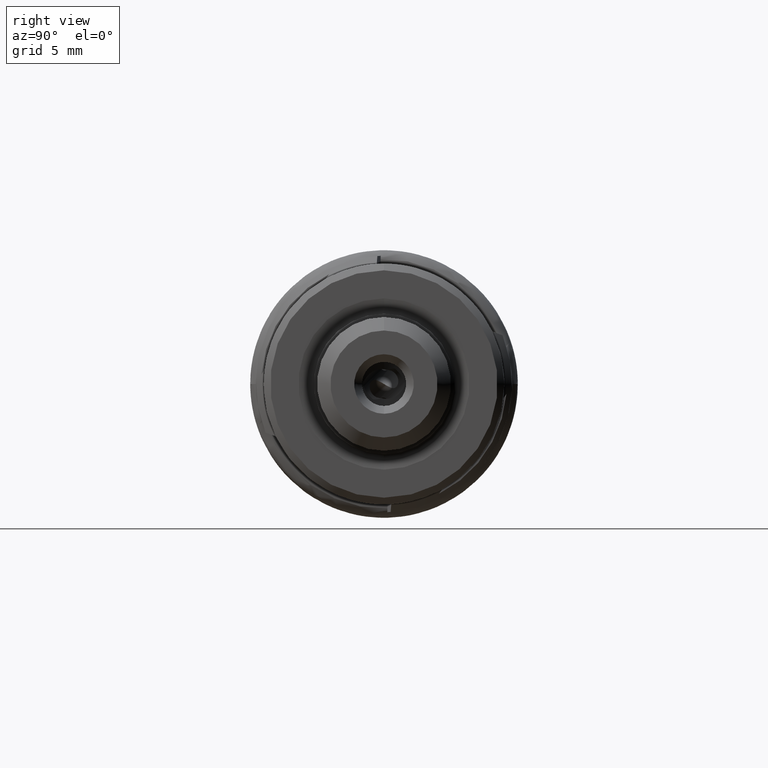
[diagram: clean part render]
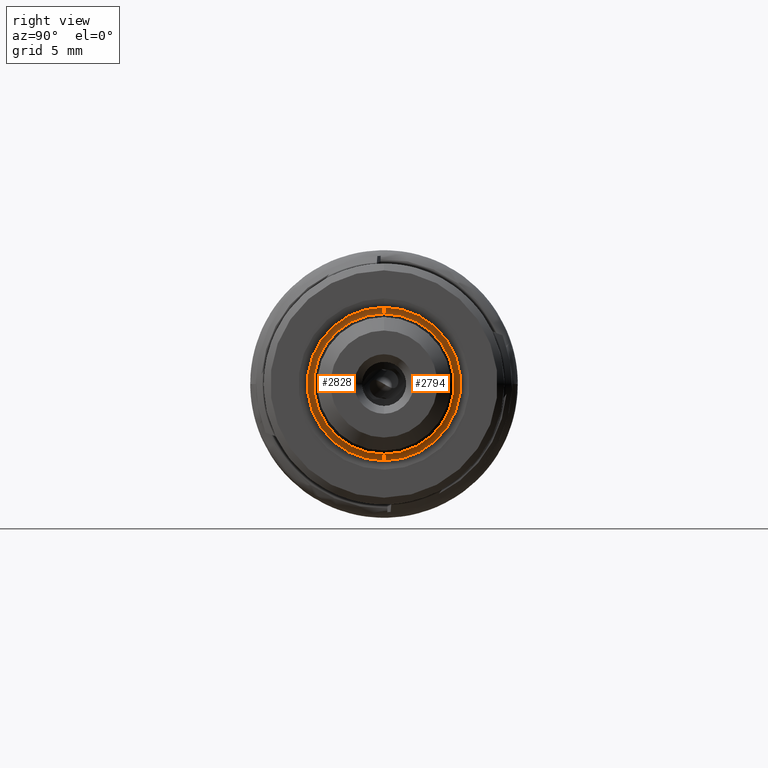
[diagram: same view with one multi-face feature highlighted, each face labeled with its STEP entity id]
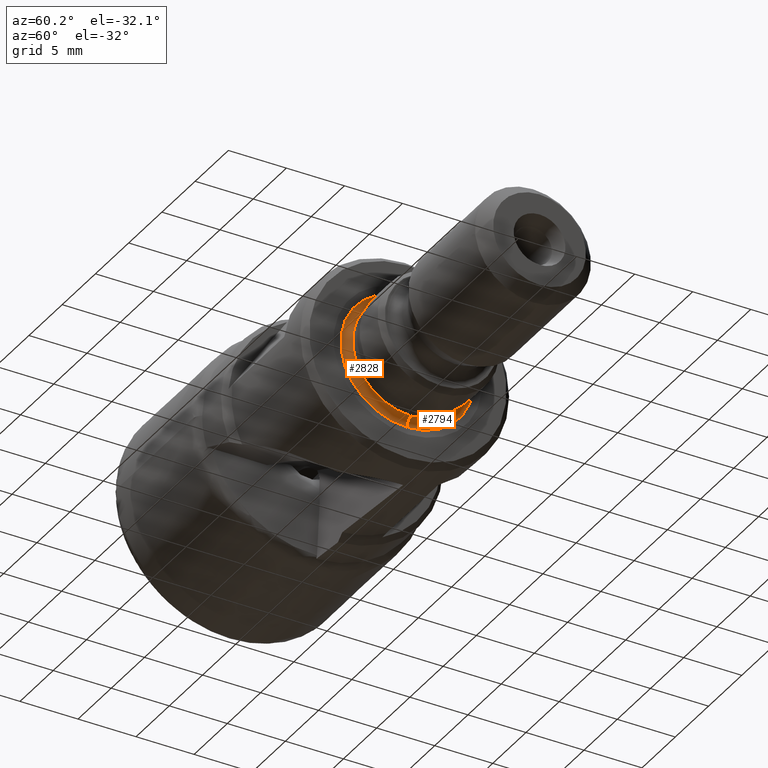
[diagram: same view with one multi-face feature highlighted, each face labeled with its STEP entity id]
A machine part, right view. The highlighted faces form ONE feature: a constant-radius fillet chain: 2 tangent blend faces with common blend radius 0.6 mm. The faces share edges in the B-rep.
A second angle (auxiliary view) of the same feature is appended — it is thin or edge-on in the first view.
Their STEP definitions:
[1] entity #2794 (Torus):
#12 = CIRCLE ( 'NONE', #3463, 5.049999999999998900 ) ;
#845 = CARTESIAN_POINT ( 'NONE',  ( 25.80583915875506000, 7.021517150753438800E-016, -5.733503860576038700 ) ) ;
#879 = CARTESIAN_POINT ( 'NONE',  ( 26.39999999999999900, 6.184466335694132100E-016, -5.049999999999998900 ) ) ;
#893 = CARTESIAN_POINT ( 'NONE',  ( 26.39999999999999900, 0.0000000000000000000, 5.049999999999998900 ) ) ;
#949 = CARTESIAN_POINT ( 'NONE',  ( 26.39999999999999900, 0.0000000000000000000, 5.649999999999998600 ) ) ;
#950 = DIRECTION ( 'NONE',  ( 0.0000000000000000000, -1.000000000000000000, 0.0000000000000000000 ) ) ;
#951 = DIRECTION ( 'NONE',  ( 0.0000000000000000000, 0.0000000000000000000, -1.000000000000000000 ) ) ;
#975 = CARTESIAN_POINT ( 'NONE',  ( 26.39999999999999900, 6.919254415182544400E-016, -5.649999999999998600 ) ) ;
#976 = DIRECTION ( 'NONE',  ( -0.0000000000000000000, 1.000000000000000000, 1.224646799147353200E-016 ) ) ;
#977 = DIRECTION ( 'NONE',  ( 0.0000000000000000000, -1.224646799147353200E-016, 1.000000000000000000 ) ) ;
#1144 = CIRCLE ( 'NONE', #3383, 5.733503860576038700 ) ;
#1220 = CIRCLE ( 'NONE', #3398, 0.5999999999999998700 ) ;
#1225 = CIRCLE ( 'NONE', #3396, 0.5999999999999998700 ) ;
#1387 = VERTEX_POINT ( 'NONE', #845 ) ;
#1393 = VERTEX_POINT ( 'NONE', #879 ) ;
#1402 = VERTEX_POINT ( 'NONE', #893 ) ;
#1425 = VERTEX_POINT ( 'NONE', #3129 ) ;
#1681 = EDGE_LOOP ( 'NONE', ( #1769, #1717, #1729, #1771 ) ) ;
#1717 = ORIENTED_EDGE ( 'NONE', *, *, #3248, .F. ) ;
#1729 = ORIENTED_EDGE ( 'NONE', *, *, #3323, .T. ) ;
#1769 = ORIENTED_EDGE ( 'NONE', *, *, #3328, .F. ) ;
#1771 = ORIENTED_EDGE ( 'NONE', *, *, #3648, .T. ) ;
#2002 = CARTESIAN_POINT ( 'NONE',  ( 25.80583915875506000, 0.0000000000000000000, 0.0000000000000000000 ) ) ;
#2003 = DIRECTION ( 'NONE',  ( -1.000000000000000000, -0.0000000000000000000, -0.0000000000000000000 ) ) ;
#2004 = DIRECTION ( 'NONE',  ( 0.0000000000000000000, 0.0000000000000000000, 1.000000000000000000 ) ) ;
#2577 = CARTESIAN_POINT ( 'NONE',  ( 26.39999999999999900, 0.0000000000000000000, 0.0000000000000000000 ) ) ;
#2578 = DIRECTION ( 'NONE',  ( -1.000000000000000000, -0.0000000000000000000, -0.0000000000000000000 ) ) ;
#2579 = DIRECTION ( 'NONE',  ( 0.0000000000000000000, 0.0000000000000000000, 1.000000000000000000 ) ) ;
#2794 = ADVANCED_FACE ( 'NONE', ( #3886 ), #3884, .F. ) ;
#3129 = CARTESIAN_POINT ( 'NONE',  ( 25.80583915875506000, 0.0000000000000000000, 5.733503860576038700 ) ) ;
#3233 = AXIS2_PLACEMENT_3D ( 'NONE', #4239, #4238, #4241 ) ;
#3248 = EDGE_CURVE ( 'NONE', #1425, #1387, #1144, .T. ) ;
#3323 = EDGE_CURVE ( 'NONE', #1425, #1402, #1225, .T. ) ;
#3328 = EDGE_CURVE ( 'NONE', #1387, #1393, #1220, .T. ) ;
#3383 = AXIS2_PLACEMENT_3D ( 'NONE', #2002, #2003, #2004 ) ;
#3396 = AXIS2_PLACEMENT_3D ( 'NONE', #949, #950, #951 ) ;
#3398 = AXIS2_PLACEMENT_3D ( 'NONE', #975, #976, #977 ) ;
#3463 = AXIS2_PLACEMENT_3D ( 'NONE', #2577, #2578, #2579 ) ;
#3648 = EDGE_CURVE ( 'NONE', #1402, #1393, #12, .T. ) ;
#3884 = TOROIDAL_SURFACE ( 'NONE', #3233, 5.649999999999998600, 0.5999999999999996400 ) ;
#3886 = FACE_OUTER_BOUND ( 'NONE', #1681, .T. ) ;
#4238 = DIRECTION ( 'NONE',  ( -1.000000000000000000, -0.0000000000000000000, -0.0000000000000000000 ) ) ;
#4239 = CARTESIAN_POINT ( 'NONE',  ( 26.39999999999999900, 0.0000000000000000000, 0.0000000000000000000 ) ) ;
#4241 = DIRECTION ( 'NONE',  ( 0.0000000000000000000, 0.0000000000000000000, 1.000000000000000000 ) ) ;
[2] entity #2828 (Torus):
#170 = DIRECTION ( 'NONE',  ( -1.000000000000000000, -0.0000000000000000000, -0.0000000000000000000 ) ) ;
#171 = CARTESIAN_POINT ( 'NONE',  ( 26.39999999999999900, 0.0000000000000000000, 0.0000000000000000000 ) ) ;
#173 = DIRECTION ( 'NONE',  ( 0.0000000000000000000, 0.0000000000000000000, 1.000000000000000000 ) ) ;
#645 = ORIENTED_EDGE ( 'NONE', *, *, #3328, .T. ) ;
#653 = ORIENTED_EDGE ( 'NONE', *, *, #3630, .F. ) ;
#845 = CARTESIAN_POINT ( 'NONE',  ( 25.80583915875506000, 7.021517150753438800E-016, -5.733503860576038700 ) ) ;
#866 = TOROIDAL_SURFACE ( 'NONE', #3458, 5.649999999999998600, 0.5999999999999996400 ) ;
#876 = FACE_OUTER_BOUND ( 'NONE', #4073, .T. ) ;
#879 = CARTESIAN_POINT ( 'NONE',  ( 26.39999999999999900, 6.184466335694132100E-016, -5.049999999999998900 ) ) ;
#893 = CARTESIAN_POINT ( 'NONE',  ( 26.39999999999999900, 0.0000000000000000000, 5.049999999999998900 ) ) ;
#949 = CARTESIAN_POINT ( 'NONE',  ( 26.39999999999999900, 0.0000000000000000000, 5.649999999999998600 ) ) ;
#950 = DIRECTION ( 'NONE',  ( 0.0000000000000000000, -1.000000000000000000, 0.0000000000000000000 ) ) ;
#951 = DIRECTION ( 'NONE',  ( 0.0000000000000000000, 0.0000000000000000000, -1.000000000000000000 ) ) ;
#975 = CARTESIAN_POINT ( 'NONE',  ( 26.39999999999999900, 6.919254415182544400E-016, -5.649999999999998600 ) ) ;
#976 = DIRECTION ( 'NONE',  ( -0.0000000000000000000, 1.000000000000000000, 1.224646799147353200E-016 ) ) ;
#977 = DIRECTION ( 'NONE',  ( 0.0000000000000000000, -1.224646799147353200E-016, 1.000000000000000000 ) ) ;
#980 = CARTESIAN_POINT ( 'NONE',  ( 26.39999999999999900, 0.0000000000000000000, 0.0000000000000000000 ) ) ;
#981 = DIRECTION ( 'NONE',  ( -1.000000000000000000, -0.0000000000000000000, -0.0000000000000000000 ) ) ;
#982 = DIRECTION ( 'NONE',  ( 0.0000000000000000000, 0.0000000000000000000, 1.000000000000000000 ) ) ;
#1220 = CIRCLE ( 'NONE', #3398, 0.5999999999999998700 ) ;
#1225 = CIRCLE ( 'NONE', #3396, 0.5999999999999998700 ) ;
#1227 = CIRCLE ( 'NONE', #3391, 5.049999999999998900 ) ;
#1302 = CIRCLE ( 'NONE', #3447, 5.733503860576038700 ) ;
#1387 = VERTEX_POINT ( 'NONE', #845 ) ;
#1393 = VERTEX_POINT ( 'NONE', #879 ) ;
#1402 = VERTEX_POINT ( 'NONE', #893 ) ;
#1425 = VERTEX_POINT ( 'NONE', #3129 ) ;
#1508 = ORIENTED_EDGE ( 'NONE', *, *, #3329, .T. ) ;
#1509 = ORIENTED_EDGE ( 'NONE', *, *, #3323, .F. ) ;
#2512 = CARTESIAN_POINT ( 'NONE',  ( 25.80583915875506000, 0.0000000000000000000, 0.0000000000000000000 ) ) ;
#2513 = DIRECTION ( 'NONE',  ( -1.000000000000000000, -0.0000000000000000000, -0.0000000000000000000 ) ) ;
#2514 = DIRECTION ( 'NONE',  ( 0.0000000000000000000, 0.0000000000000000000, 1.000000000000000000 ) ) ;
#2828 = ADVANCED_FACE ( 'NONE', ( #876 ), #866, .F. ) ;
#3129 = CARTESIAN_POINT ( 'NONE',  ( 25.80583915875506000, 0.0000000000000000000, 5.733503860576038700 ) ) ;
#3323 = EDGE_CURVE ( 'NONE', #1425, #1402, #1225, .T. ) ;
#3328 = EDGE_CURVE ( 'NONE', #1387, #1393, #1220, .T. ) ;
#3329 = EDGE_CURVE ( 'NONE', #1393, #1402, #1227, .T. ) ;
#3391 = AXIS2_PLACEMENT_3D ( 'NONE', #980, #981, #982 ) ;
#3396 = AXIS2_PLACEMENT_3D ( 'NONE', #949, #950, #951 ) ;
#3398 = AXIS2_PLACEMENT_3D ( 'NONE', #975, #976, #977 ) ;
#3447 = AXIS2_PLACEMENT_3D ( 'NONE', #2512, #2513, #2514 ) ;
#3458 = AXIS2_PLACEMENT_3D ( 'NONE', #171, #170, #173 ) ;
#3630 = EDGE_CURVE ( 'NONE', #1387, #1425, #1302, .T. ) ;
#4073 = EDGE_LOOP ( 'NONE', ( #653, #645, #1508, #1509 ) ) ;